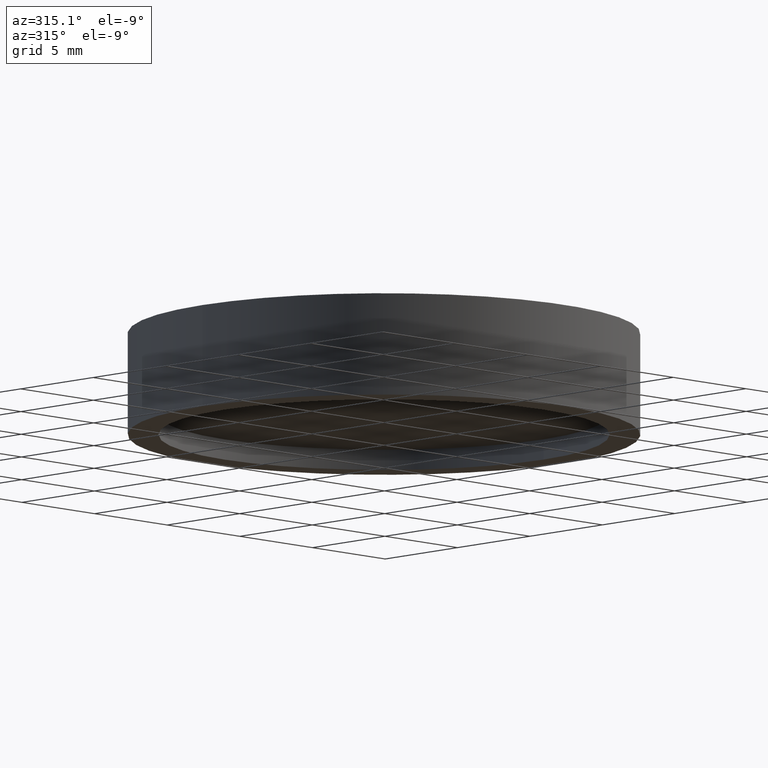
[diagram: clean part render]
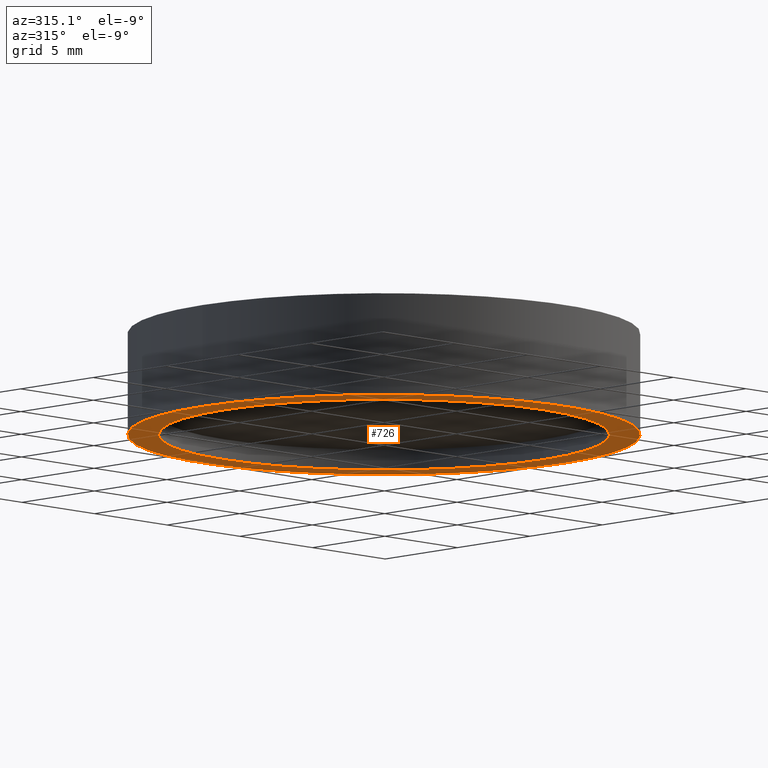
[diagram: same view with one face highlighted and labeled with its STEP entity id]
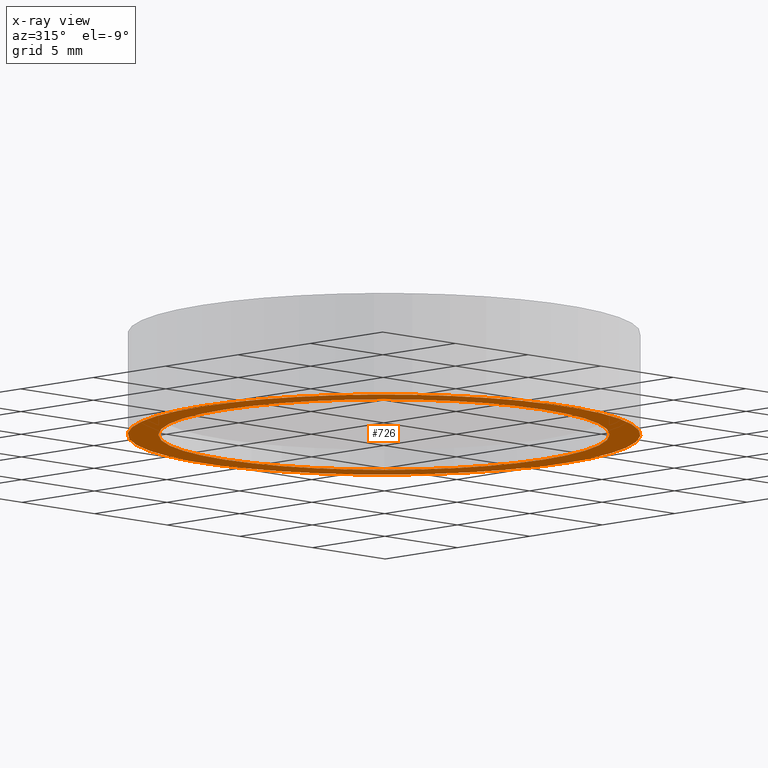
[diagram: x-ray of the same camera — body ghosted, the highlighted face saturated]
A machine part, auxiliary view. The second image highlights one B-rep face of the part: STEP entity #726.
The next image is the same camera in x-ray: the body ghosted, the highlighted face saturated — about 0% of this face is hidden behind the body in this view.
In plain terms, the highlighted planar face has unit normal (-0, 0, -1).
Its self-contained STEP definition (entity closure, byte-faithful):
#5 = CIRCLE ( 'NONE', #443, 12.50000000000000000 ) ;
#13 = DIRECTION ( 'NONE',  ( -1.000000000000000000, 0.0000000000000000000, 0.0000000000000000000 ) ) ;
#32 = FACE_BOUND ( 'NONE', #476, .T. ) ;
#46 = CIRCLE ( 'NONE', #95, 11.00000000000000000 ) ;
#81 = CARTESIAN_POINT ( 'NONE',  ( 0.0000000000000000000, 0.0000000000000000000, -0.6189999999999997700 ) ) ;
#95 = AXIS2_PLACEMENT_3D ( 'NONE', #130, #516, #282 ) ;
#130 = CARTESIAN_POINT ( 'NONE',  ( 0.0000000000000000000, 0.0000000000000000000, -0.6190000000000003300 ) ) ;
#142 = CARTESIAN_POINT ( 'NONE',  ( 2.530701911620195300E-016, 0.0000000000000000000, -0.6190000000000003300 ) ) ;
#165 = ORIENTED_EDGE ( 'NONE', *, *, #300, .F. ) ;
#166 = DIRECTION ( 'NONE',  ( -0.0000000000000000000, -0.0000000000000000000, -1.000000000000000000 ) ) ;
#172 = CARTESIAN_POINT ( 'NONE',  ( -11.00000000000000000, 0.0000000000000000000, -0.6190000000000003300 ) ) ;
#220 = CARTESIAN_POINT ( 'NONE',  ( 12.50000000000000000, 1.530808498934191500E-015, -0.6189999999999997700 ) ) ;
#231 = CIRCLE ( 'NONE', #558, 12.50000000000000000 ) ;
#244 = PLANE ( 'NONE',  #674 ) ;
#252 = EDGE_CURVE ( 'NONE', #542, #556, #5, .T. ) ;
#282 = DIRECTION ( 'NONE',  ( -1.000000000000000000, 0.0000000000000000000, 0.0000000000000000000 ) ) ;
#295 = EDGE_LOOP ( 'NONE', ( #580, #394 ) ) ;
#300 = EDGE_CURVE ( 'NONE', #485, #377, #546, .T. ) ;
#326 = CARTESIAN_POINT ( 'NONE',  ( 0.0000000000000000000, 0.0000000000000000000, -0.6190000000000003300 ) ) ;
#333 = DIRECTION ( 'NONE',  ( -1.000000000000000000, 0.0000000000000000000, 0.0000000000000000000 ) ) ;
#377 = VERTEX_POINT ( 'NONE', #396 ) ;
#390 = DIRECTION ( 'NONE',  ( -1.000000000000000000, 0.0000000000000000000, 0.0000000000000000000 ) ) ;
#394 = ORIENTED_EDGE ( 'NONE', *, *, #252, .T. ) ;
#396 = CARTESIAN_POINT ( 'NONE',  ( 11.00000000000000000, 1.347111479062088400E-015, -0.6190000000000003300 ) ) ;
#402 = DIRECTION ( 'NONE',  ( -0.0000000000000000000, 0.0000000000000000000, -1.000000000000000000 ) ) ;
#443 = AXIS2_PLACEMENT_3D ( 'NONE', #495, #166, #333 ) ;
#467 = ORIENTED_EDGE ( 'NONE', *, *, #532, .F. ) ;
#476 = EDGE_LOOP ( 'NONE', ( #165, #467 ) ) ;
#485 = VERTEX_POINT ( 'NONE', #172 ) ;
#495 = CARTESIAN_POINT ( 'NONE',  ( 0.0000000000000000000, 0.0000000000000000000, -0.6189999999999997700 ) ) ;
#516 = DIRECTION ( 'NONE',  ( 0.0000000000000000000, 0.0000000000000000000, -1.000000000000000000 ) ) ;
#519 = CARTESIAN_POINT ( 'NONE',  ( -12.50000000000000000, 0.0000000000000000000, -0.6189999999999997700 ) ) ;
#525 = AXIS2_PLACEMENT_3D ( 'NONE', #326, #673, #390 ) ;
#532 = EDGE_CURVE ( 'NONE', #377, #485, #46, .T. ) ;
#542 = VERTEX_POINT ( 'NONE', #220 ) ;
#546 = CIRCLE ( 'NONE', #525, 11.00000000000000000 ) ;
#556 = VERTEX_POINT ( 'NONE', #519 ) ;
#558 = AXIS2_PLACEMENT_3D ( 'NONE', #81, #622, #13 ) ;
#578 = DIRECTION ( 'NONE',  ( -1.000000000000000000, 0.0000000000000000000, 0.0000000000000000000 ) ) ;
#580 = ORIENTED_EDGE ( 'NONE', *, *, #620, .T. ) ;
#590 = FACE_OUTER_BOUND ( 'NONE', #295, .T. ) ;
#620 = EDGE_CURVE ( 'NONE', #556, #542, #231, .T. ) ;
#622 = DIRECTION ( 'NONE',  ( -0.0000000000000000000, -0.0000000000000000000, -1.000000000000000000 ) ) ;
#673 = DIRECTION ( 'NONE',  ( 0.0000000000000000000, 0.0000000000000000000, -1.000000000000000000 ) ) ;
#674 = AXIS2_PLACEMENT_3D ( 'NONE', #142, #402, #578 ) ;
#726 = ADVANCED_FACE ( 'NONE', ( #32, #590 ), #244, .T. ) ;